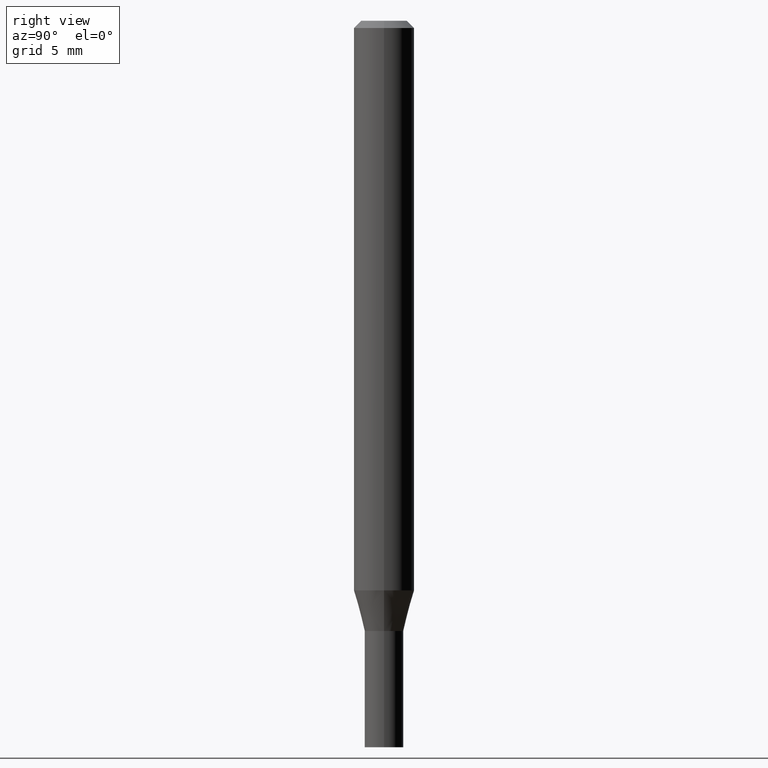
[diagram: clean part render]
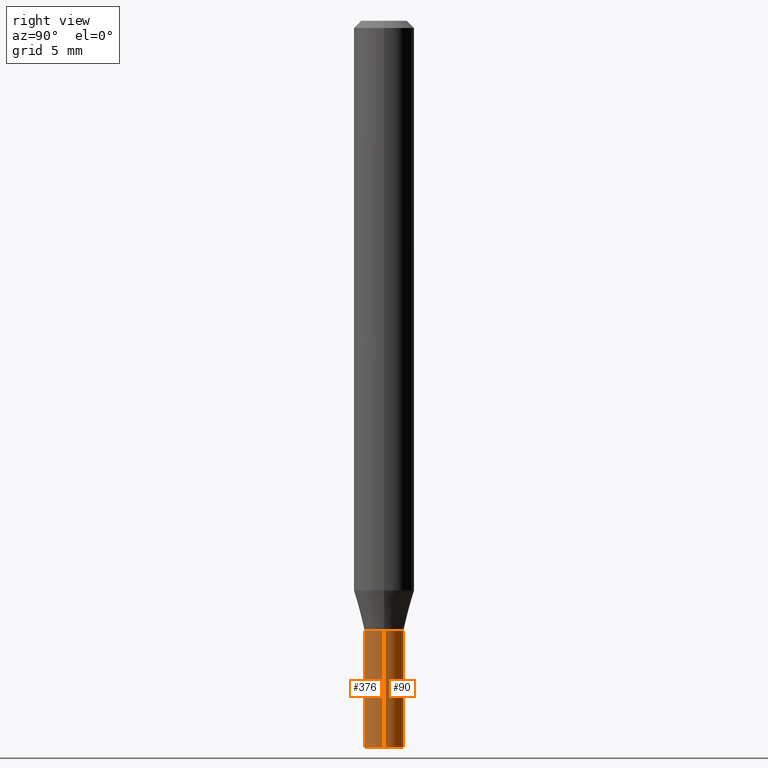
[diagram: same view with one multi-face feature highlighted, each face labeled with its STEP entity id]
A machine part, right view. The highlighted faces form ONE feature: a constant-radius fillet chain: 2 tangent blend faces with common blend radius 1.016 mm. The faces share edges in the B-rep.
Their STEP definitions:
[1] entity #90 (Cylinder):
#1 = DIRECTION ( 'NONE',  ( -2.445468806185136597E-29, 3.491481338843145583E-15, 1.000000000000000000 ) ) ;
#2 = EDGE_LOOP ( 'NONE', ( #269, #187, #333, #446 ) ) ;
#6 = DIRECTION ( 'NONE',  ( 1.000000000000000000, -6.982962677686259611E-15, 0.000000000000000000 ) ) ;
#11 = CARTESIAN_POINT ( 'NONE',  ( 3.081290695793272291E-29, -4.399266486942364120E-15, -1.260000000000000231 ) ) ;
#26 = DIRECTION ( 'NONE',  ( 1.000000000000000000, -6.982962677686259611E-15, 0.000000000000000000 ) ) ;
#37 = LINE ( 'NONE', #400, #308 ) ;
#52 = LINE ( 'NONE', #204, #355 ) ;
#54 = AXIS2_PLACEMENT_3D ( 'NONE', #69, #74, #26 ) ;
#55 = DIRECTION ( 'NONE',  ( -2.445468806185136877E-29, 3.491481338843145188E-15, 1.000000000000000000 ) ) ;
#66 = VERTEX_POINT ( 'NONE', #452 ) ;
#69 = CARTESIAN_POINT ( 'NONE',  ( 3.668203209277704895E-29, -5.237222008264718177E-15, -1.500000000000000222 ) ) ;
#74 = DIRECTION ( 'NONE',  ( -2.445468806185136597E-29, 3.491481338843145583E-15, 1.000000000000000000 ) ) ;
#90 = ADVANCED_FACE ( 'NONE', ( #249 ), #176, .T. ) ;
#103 = CIRCLE ( 'NONE', #133, 0.04000000000000000083 ) ;
#114 = VERTEX_POINT ( 'NONE', #150 ) ;
#115 = CIRCLE ( 'NONE', #54, 0.04000000000000000083 ) ;
#133 = AXIS2_PLACEMENT_3D ( 'NONE', #11, #1, #6 ) ;
#150 = CARTESIAN_POINT ( 'NONE',  ( 0.04000000000000000083, -4.678584994049814947E-15, -1.260000000000000231 ) ) ;
#165 = EDGE_CURVE ( 'NONE', #114, #321, #103, .T. ) ;
#176 = CYLINDRICAL_SURFACE ( 'NONE', #334, 0.04000000000000000083 ) ;
#187 = ORIENTED_EDGE ( 'NONE', *, *, #276, .T. ) ;
#204 = CARTESIAN_POINT ( 'NONE',  ( 0.04000000000000000083, -2.793185071074506290E-16, 1.950470710318374387E-30 ) ) ;
#249 = FACE_OUTER_BOUND ( 'NONE', #2, .T. ) ;
#269 = ORIENTED_EDGE ( 'NONE', *, *, #406, .T. ) ;
#276 = EDGE_CURVE ( 'NONE', #66, #321, #37, .T. ) ;
#283 = DIRECTION ( 'NONE',  ( 1.000000000000000000, -6.982962677686265922E-15, 4.876176775795935793E-29 ) ) ;
#302 = EDGE_CURVE ( 'NONE', #458, #114, #52, .T. ) ;
#306 = DIRECTION ( 'NONE',  ( -2.445468806185136877E-29, 3.491481338843145188E-15, 1.000000000000000000 ) ) ;
#308 = VECTOR ( 'NONE', #55, 39.37007874015748143 ) ;
#315 = DIRECTION ( 'NONE',  ( -2.445468806185136597E-29, 3.491481338843145583E-15, 1.000000000000000000 ) ) ;
#321 = VERTEX_POINT ( 'NONE', #379 ) ;
#333 = ORIENTED_EDGE ( 'NONE', *, *, #165, .F. ) ;
#334 = AXIS2_PLACEMENT_3D ( 'NONE', #354, #315, #283 ) ;
#354 = CARTESIAN_POINT ( 'NONE',  ( 0.000000000000000000, 0.000000000000000000, 0.000000000000000000 ) ) ;
#355 = VECTOR ( 'NONE', #306, 39.37007874015748143 ) ;
#379 = CARTESIAN_POINT ( 'NONE',  ( -0.04000000000000000083, -4.534027153299501216E-15, -1.260000000000000231 ) ) ;
#400 = CARTESIAN_POINT ( 'NONE',  ( -0.04000000000000000083, 2.842170943040400803E-16, -1.967574036101962509E-30 ) ) ;
#406 = EDGE_CURVE ( 'NONE', #458, #66, #115, .T. ) ;
#422 = CARTESIAN_POINT ( 'NONE',  ( 0.04000000000000000083, -5.516540515372169003E-15, -1.500000000000000222 ) ) ;
#446 = ORIENTED_EDGE ( 'NONE', *, *, #302, .F. ) ;
#452 = CARTESIAN_POINT ( 'NONE',  ( -0.04000000000000000083, -4.534027153299501216E-15, -1.500000000000000222 ) ) ;
#458 = VERTEX_POINT ( 'NONE', #422 ) ;
[2] entity #376 (Cylinder):
#10 = ORIENTED_EDGE ( 'NONE', *, *, #302, .T. ) ;
#37 = LINE ( 'NONE', #400, #308 ) ;
#52 = LINE ( 'NONE', #204, #355 ) ;
#55 = DIRECTION ( 'NONE',  ( -2.445468806185136877E-29, 3.491481338843145188E-15, 1.000000000000000000 ) ) ;
#62 = CIRCLE ( 'NONE', #93, 0.04000000000000000083 ) ;
#66 = VERTEX_POINT ( 'NONE', #452 ) ;
#93 = AXIS2_PLACEMENT_3D ( 'NONE', #242, #415, #372 ) ;
#98 = DIRECTION ( 'NONE',  ( 1.000000000000000000, -6.982962677686259611E-15, 0.000000000000000000 ) ) ;
#101 = DIRECTION ( 'NONE',  ( -2.445468806185136597E-29, 3.491481338843145583E-15, 1.000000000000000000 ) ) ;
#110 = CARTESIAN_POINT ( 'NONE',  ( 0.000000000000000000, 0.000000000000000000, 0.000000000000000000 ) ) ;
#114 = VERTEX_POINT ( 'NONE', #150 ) ;
#150 = CARTESIAN_POINT ( 'NONE',  ( 0.04000000000000000083, -4.678584994049814947E-15, -1.260000000000000231 ) ) ;
#168 = CARTESIAN_POINT ( 'NONE',  ( 3.081290695793272291E-29, -4.399266486942364120E-15, -1.260000000000000231 ) ) ;
#204 = CARTESIAN_POINT ( 'NONE',  ( 0.04000000000000000083, -2.793185071074506290E-16, 1.950470710318374387E-30 ) ) ;
#209 = ORIENTED_EDGE ( 'NONE', *, *, #299, .T. ) ;
#212 = AXIS2_PLACEMENT_3D ( 'NONE', #110, #101, #282 ) ;
#234 = ORIENTED_EDGE ( 'NONE', *, *, #399, .F. ) ;
#242 = CARTESIAN_POINT ( 'NONE',  ( 3.668203209277704895E-29, -5.237222008264718177E-15, -1.500000000000000222 ) ) ;
#258 = ORIENTED_EDGE ( 'NONE', *, *, #276, .F. ) ;
#276 = EDGE_CURVE ( 'NONE', #66, #321, #37, .T. ) ;
#278 = FACE_OUTER_BOUND ( 'NONE', #345, .T. ) ;
#282 = DIRECTION ( 'NONE',  ( 1.000000000000000000, -6.982962677686265922E-15, 4.876176775795935793E-29 ) ) ;
#299 = EDGE_CURVE ( 'NONE', #66, #458, #62, .T. ) ;
#302 = EDGE_CURVE ( 'NONE', #458, #114, #52, .T. ) ;
#306 = DIRECTION ( 'NONE',  ( -2.445468806185136877E-29, 3.491481338843145188E-15, 1.000000000000000000 ) ) ;
#308 = VECTOR ( 'NONE', #55, 39.37007874015748143 ) ;
#321 = VERTEX_POINT ( 'NONE', #379 ) ;
#345 = EDGE_LOOP ( 'NONE', ( #258, #209, #10, #234 ) ) ;
#355 = VECTOR ( 'NONE', #306, 39.37007874015748143 ) ;
#372 = DIRECTION ( 'NONE',  ( 1.000000000000000000, -6.982962677686259611E-15, 0.000000000000000000 ) ) ;
#376 = ADVANCED_FACE ( 'NONE', ( #278 ), #448, .T. ) ;
#379 = CARTESIAN_POINT ( 'NONE',  ( -0.04000000000000000083, -4.534027153299501216E-15, -1.260000000000000231 ) ) ;
#399 = EDGE_CURVE ( 'NONE', #321, #114, #444, .T. ) ;
#400 = CARTESIAN_POINT ( 'NONE',  ( -0.04000000000000000083, 2.842170943040400803E-16, -1.967574036101962509E-30 ) ) ;
#401 = AXIS2_PLACEMENT_3D ( 'NONE', #168, #451, #98 ) ;
#415 = DIRECTION ( 'NONE',  ( -2.445468806185136597E-29, 3.491481338843145583E-15, 1.000000000000000000 ) ) ;
#422 = CARTESIAN_POINT ( 'NONE',  ( 0.04000000000000000083, -5.516540515372169003E-15, -1.500000000000000222 ) ) ;
#444 = CIRCLE ( 'NONE', #401, 0.04000000000000000083 ) ;
#448 = CYLINDRICAL_SURFACE ( 'NONE', #212, 0.04000000000000000083 ) ;
#451 = DIRECTION ( 'NONE',  ( -2.445468806185136597E-29, 3.491481338843145583E-15, 1.000000000000000000 ) ) ;
#452 = CARTESIAN_POINT ( 'NONE',  ( -0.04000000000000000083, -4.534027153299501216E-15, -1.500000000000000222 ) ) ;
#458 = VERTEX_POINT ( 'NONE', #422 ) ;